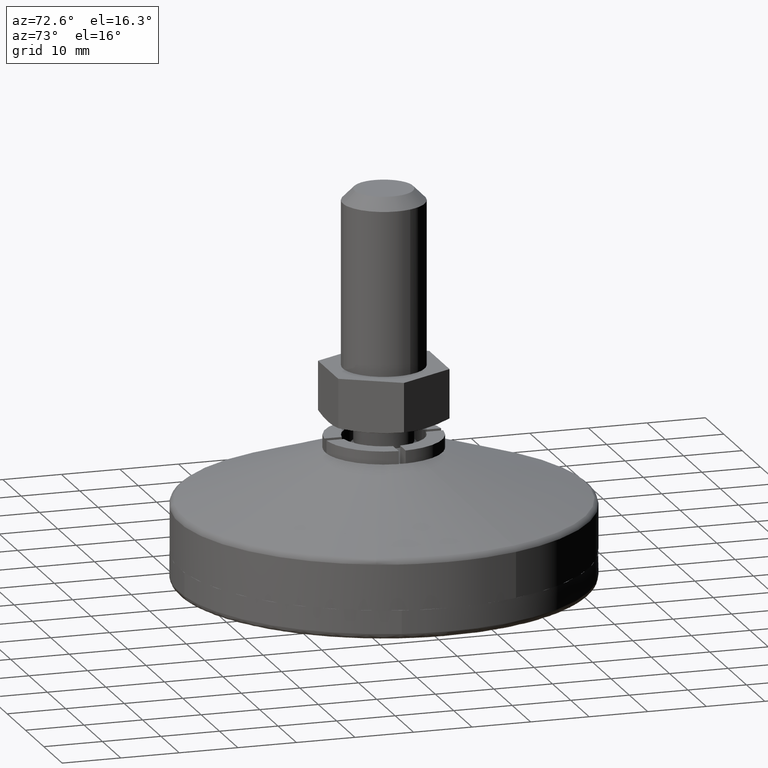
[diagram: clean part render]
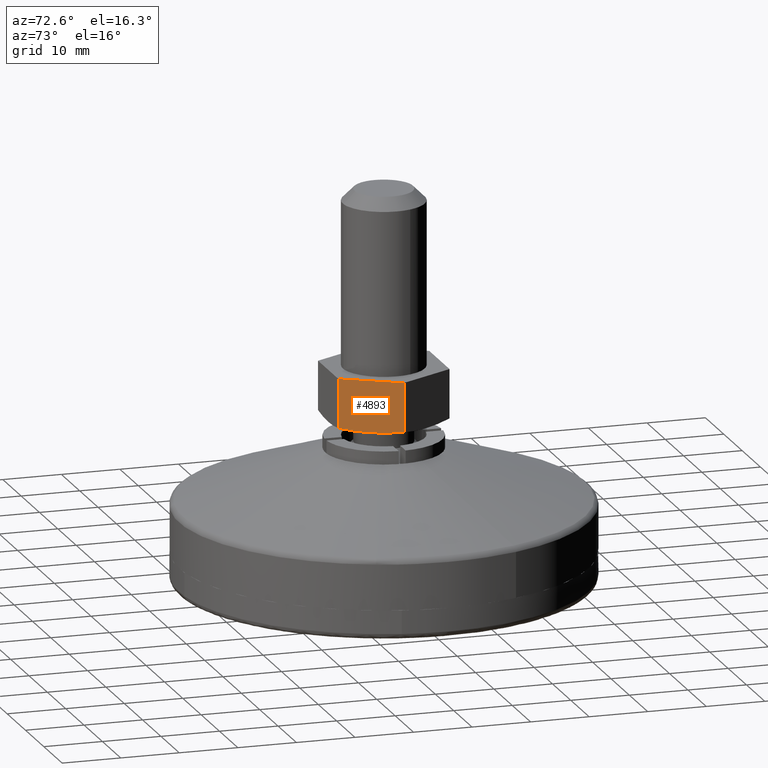
[diagram: same view with one face highlighted and labeled with its STEP entity id]
A machine part, auxiliary view. The second image highlights one B-rep face of the part: STEP entity #4893.
In plain terms, the highlighted face is a freeform B-spline surface patch.
Its self-contained STEP definition (entity closure, byte-faithful):
#4707=CARTESIAN_POINT('',(11.0,3.673203E-017,28.119820581184001));
#4708=VERTEX_POINT('',#4707);
#4727=CARTESIAN_POINT('',(5.515173000000000,-9.500000000000000,28.115324782337652));
#4728=VERTEX_POINT('',#4727);
#4729=CARTESIAN_POINT('',(5.515173000000000,-9.500000000000000,28.115324782337652));
#4730=CARTESIAN_POINT('',(5.972269691093762,-8.708285226609570,27.980159962618931));
#4731=CARTESIAN_POINT('',(6.429361144447054,-7.916579525252666,27.870555366433031));
#4732=CARTESIAN_POINT('',(7.114987597806017,-6.729039552358333,27.758494729032069));
#4733=CARTESIAN_POINT('',(7.343527963383754,-6.333195987376524,27.729854644851500));
#4734=CARTESIAN_POINT('',(7.800604794689809,-5.541515612150924,27.691605778915651));
#4735=CARTESIAN_POINT('',(8.257677721726362,-4.749841999319161,27.672409785477289));
#4736=CARTESIAN_POINT('',(8.714742602338401,-3.958182323304875,27.692480420510901));
#4737=CARTESIAN_POINT('',(9.171803584491130,-3.166529399620882,27.731575574262209));
#4738=CARTESIAN_POINT('',(9.400332128573790,-2.770706310071250,27.760624499030101));
#4739=CARTESIAN_POINT('',(10.085912419198030,-1.583246293386995,27.873838448197571));
#4740=CARTESIAN_POINT('',(10.542958816162770,-0.791618631992213,27.984109458725829));
#4741=CARTESIAN_POINT('',(11.000000000000020,-1.113238E-014,28.119820581183980));
#4742=B_SPLINE_CURVE_WITH_KNOTS('',3,(#4729,#4730,#4731,#4732,#4733,#4734,#4735,#4736,#4737,#4738,#4739,#4740,#4741),.UNSPECIFIED.,.F.,.U.,(4,2,2,1,2,2,4),(0.0,0.250000000000000,0.375000000000000,0.500000000000000,0.625000000000000,0.750000000000000,1.0),.UNSPECIFIED.);
#4743=EDGE_CURVE('',#4728,#4708,#4742,.T.);
#4797=CARTESIAN_POINT('',(5.515173000000000,-9.500000000000000,36.500000000000000));
#4798=VERTEX_POINT('',#4797);
#4804=CARTESIAN_POINT('',(11.0,0.0,36.500000000000000));
#4805=VERTEX_POINT('',#4804);
#4806=CARTESIAN_POINT('',(5.515173000000000,-9.500000000000000,36.500000000000000));
#4807=CARTESIAN_POINT('',(11.0,0.0,36.500000000000000));
#4808=QUASI_UNIFORM_CURVE('',1,(#4806,#4807),.UNSPECIFIED.,.F.,.U.);
#4809=EDGE_CURVE('',#4798,#4805,#4808,.T.);
#4869=CARTESIAN_POINT('',(5.515173000000000,-9.500000000000000,28.115324782337652));
#4870=CARTESIAN_POINT('',(5.515173000000000,-9.500000000000000,36.500000000000000));
#4871=QUASI_UNIFORM_CURVE('',1,(#4869,#4870),.UNSPECIFIED.,.F.,.U.);
#4872=EDGE_CURVE('',#4728,#4798,#4871,.T.);
#4878=CARTESIAN_POINT('',(5.241205850493024,-9.974525070766360,27.241778332982118));
#4879=CARTESIAN_POINT('',(11.273967247583339,0.474525240639586,27.241778332982118));
#4880=CARTESIAN_POINT('',(5.241205850493024,-9.974525070766360,36.940448024669593));
#4881=CARTESIAN_POINT('',(11.273967247583339,0.474525240639586,36.940448024669593));
#4882=B_SPLINE_SURFACE_WITH_KNOTS('',1,1,((#4878,#4880),(#4879,#4881)),.UNSPECIFIED.,.F.,.F.,.U.,(2,2),(2,2),(0.0,12.065523713644421),(0.0,9.698669691687464),.UNSPECIFIED.);
#4883=ORIENTED_EDGE('',*,*,#4872,.F.);
#4884=ORIENTED_EDGE('',*,*,#4743,.T.);
#4885=CARTESIAN_POINT('',(11.0,3.673203E-017,28.119820581184001));
#4886=CARTESIAN_POINT('',(11.0,0.0,36.500000000000000));
#4887=QUASI_UNIFORM_CURVE('',1,(#4885,#4886),.UNSPECIFIED.,.F.,.U.);
#4888=EDGE_CURVE('',#4708,#4805,#4887,.T.);
#4889=ORIENTED_EDGE('',*,*,#4888,.T.);
#4890=ORIENTED_EDGE('',*,*,#4809,.F.);
#4891=EDGE_LOOP('',(#4883,#4884,#4889,#4890));
#4892=FACE_OUTER_BOUND('',#4891,.T.);
#4893=ADVANCED_FACE('',(#4892),#4882,.T.);